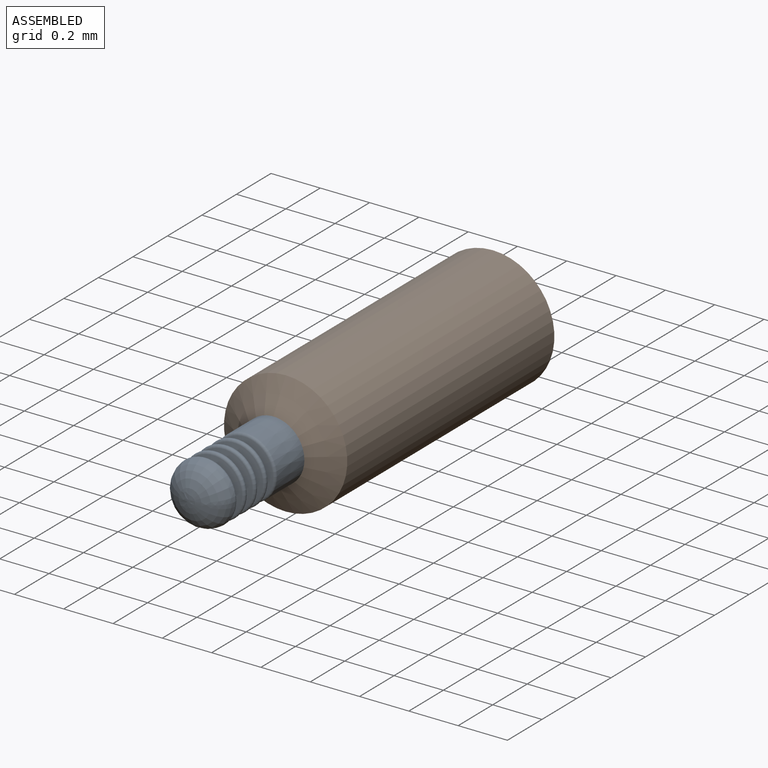
[diagram: assembled view]
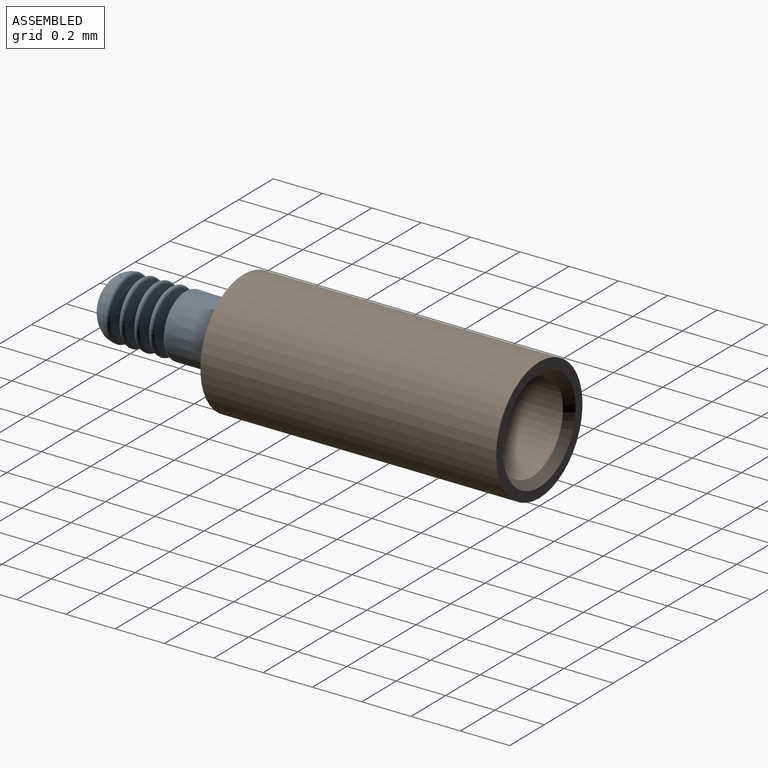
[diagram: assembled view, second angle]
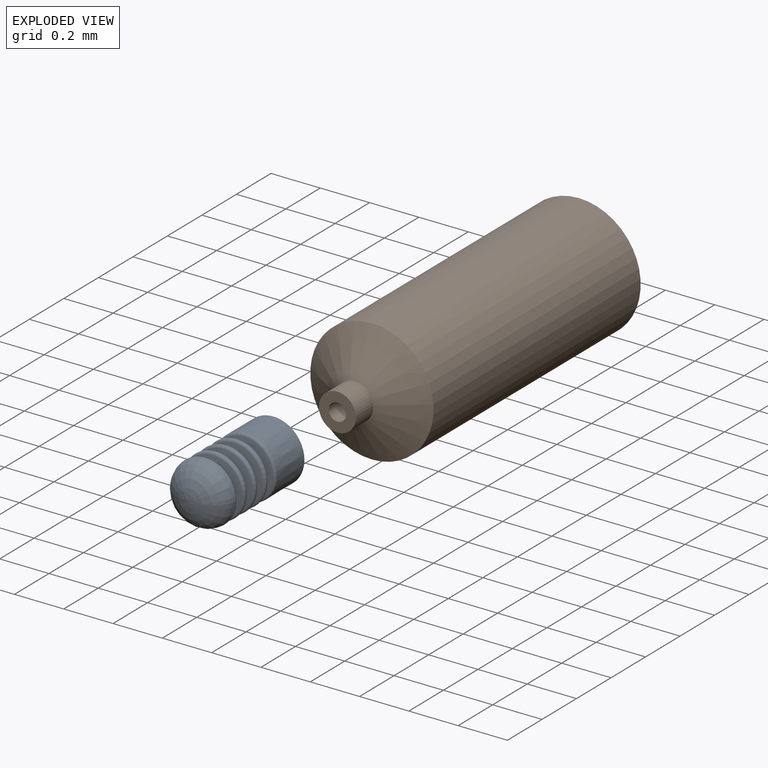
[diagram: exploded view]
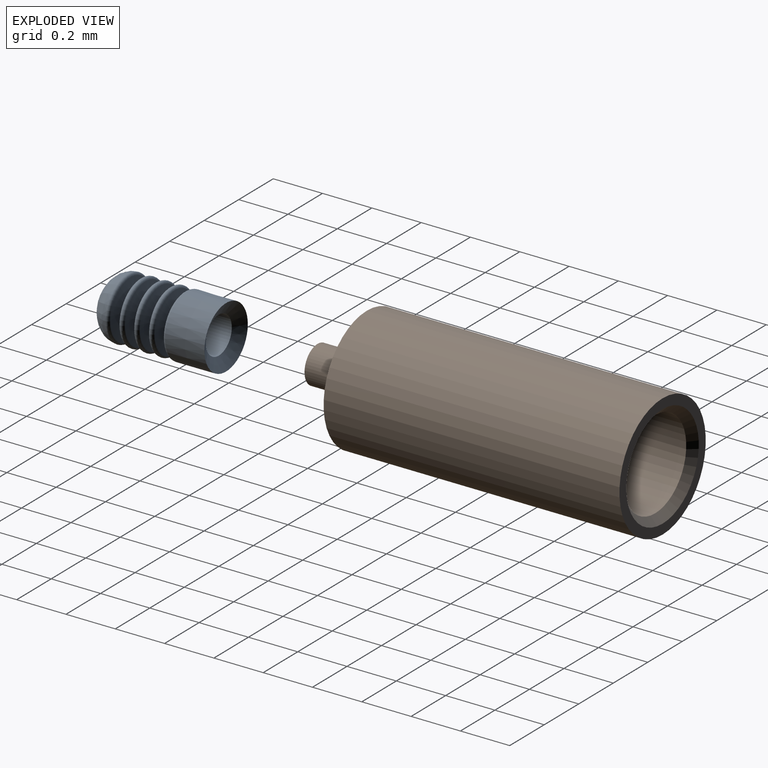
[diagram: exploded view, second angle]
ASSEMBLY  parts=2 mates=2
PART A: 42 faces, bbox 0.5x0.3x0.3 mm
  f0: torus R=0.12mm, axis (-1,0,0), area 0mm2, adj f1,f41
  f1: cone r=0.12mm half-angle=81.4deg, axis (1,0,0), area 0mm2, adj f0,f2
  f2: torus R=0.05mm, axis (-1,0,0), area 0mm2, adj f1,f3
  f3: cone r=0.12mm half-angle=81.4deg, axis (-1,0,0), area 0mm2, adj f2,f4
  f4: torus R=0.12mm, axis (-1,0,0), area 0mm2, adj f3,f5
  f5: cone r=0.12mm half-angle=81.4deg, axis (1,0,0), area 0mm2, adj f4,f6
  f6: torus R=0.05mm, axis (-1,0,0), area 0mm2, adj f5,f7
  f7: cone r=0.12mm half-angle=81.4deg, axis (-1,0,0), area 0mm2, adj f6,f8
  f8: torus R=0.12mm, axis (-1,0,0), area 0mm2, adj f7,f9
  f9: cone r=0.12mm half-angle=81.4deg, axis (1,0,0), area 0mm2, adj f8,f10
  f10: torus R=0.05mm, axis (-1,0,0), area 0mm2, adj f9,f11
  f11: cone r=0.12mm half-angle=81.4deg, axis (-1,0,0), area 0mm2, adj f10,f12
  f12: torus R=0.12mm, axis (-1,0,0), area 0mm2, adj f11,f13
  f13: revolved ~0.25x0.25mm, area 0.1mm2, adj f12,f14
  f14: cone r=0.07mm half-angle=60deg, axis (-1,0,0), area 0mm2, adj f13,f15
  f15: cylinder r=0.07mm len=0.15mm, axis (-1,0,0), area 0mm2, adj f14,f16
  f16: plane 0.15x0.15mm, normal (-1,0,0), area 0mm2, adj f15,f17
  f17: cylinder r=0.03mm len=0.07mm, axis (-1,0,0), area 0mm2, adj f16,f18
  f18: revolved ~0.25x0.25mm, area 0mm2, adj f17,f19
  f19: torus R=0.12mm, axis (-1,0,0), area 0mm2, adj f18,f20
  f20: cone r=0.12mm half-angle=81.4deg, axis (-1,0,0), area 0mm2, adj f19,f21
  f21: torus R=0.05mm, axis (-1,0,0), area 0mm2, adj f20,f22
  f22: cone r=0.12mm half-angle=81.4deg, axis (1,0,0), area 0mm2, adj f21,f23
  f23: torus R=0.12mm, axis (-1,0,0), area 0mm2, adj f22,f24
  f24: cone r=0.12mm half-angle=81.4deg, axis (-1,0,0), area 0mm2, adj f23,f25
  f25: torus R=0.05mm, axis (-1,0,0), area 0mm2, adj f24,f26
  f26: cone r=0.12mm half-angle=81.4deg, axis (1,0,0), area 0mm2, adj f25,f27
  f27: torus R=0.12mm, axis (-1,0,0), area 0mm2, adj f26,f28
  f28: cone r=0.12mm half-angle=81.4deg, axis (-1,0,0), area 0mm2, adj f27,f29
  f29: torus R=0.05mm, axis (-1,0,0), area 0mm2, adj f28,f30
  f30: cone r=0.12mm half-angle=81.4deg, axis (1,0,0), area 0mm2, adj f29,f31
  f31: torus R=0.12mm, axis (-1,0,0), area 0mm2, adj f30,f32
  f32: cone r=0.12mm half-angle=81.4deg, axis (-1,0,0), area 0mm2, adj f31,f33
  f33: torus R=0.05mm, axis (-1,0,0), area 0mm2, adj f32,f34
  f34: cone r=0.12mm half-angle=81.4deg, axis (1,0,0), area 0mm2, adj f33,f35
  f35: torus R=0.12mm, axis (-1,0,0), area 0mm2, adj f34,f36
  f36: revolved ~0.25x0.25mm, area 0.1mm2, adj f35
  f37: revolved ~0.25x0.25mm, area 0.1mm2, adj f38
  f38: torus R=0.12mm, axis (-1,0,0), area 0mm2, adj f37,f39
  f39: cone r=0.12mm half-angle=81.4deg, axis (1,0,0), area 0mm2, adj f38,f40
  f40: torus R=0.05mm, axis (-1,0,0), area 0mm2, adj f39,f41
  f41: cone r=0.12mm half-angle=81.4deg, axis (-1,0,0), area 0mm2, adj f0,f40
PART B: 9 faces, bbox 1.4x0.5x0.5 mm
  f0: cylinder r=0.07mm len=0.15mm, axis (-1,0,0), area 0mm2, adj f1,f7
  f1: cone r=0.07mm half-angle=60.3deg, axis (-1,0,0), area 0.2mm2, adj f0,f2
  f2: cylinder r=0.25mm len=1.2mm, axis (-1,0,0), area 1.9mm2, adj f1,f3
  f3: plane 0.5x0.5mm, normal (-1,0,0), area 0.1mm2, adj f2,f8
  f4: cylinder r=0.18mm len=0.97mm, axis (-1,0,0), area 1.1mm2, adj f5,f8
  f5: plane 0.36x0.36mm, normal (-1,0,0), area 0.1mm2, adj f4,f6
  f6: cylinder r=0.03mm len=0.4mm, axis (-1,0,0), area 0.1mm2, adj f5,f7
  f7: plane 0.15x0.15mm, normal (1,0,0), area 0mm2, adj f0,f6
  f8: cone r=0.18mm half-angle=45deg, axis (-1,0,0), area 0.1mm2, adj f3,f4
PLACE A rot(axis=(0,0,-1),90deg) t=(0,-0.67,0)mm
PLACE B rot(axis=(0,0,-1),90deg) t=(0,0.37,0)mm
MATE planar A.f0 <-> B.f0  axis (0,1,0) through (0,-0.4,0)mm
MATE slider A.f5 <-> B.f0  axis (0,1,0) through (0,-0.35,0)mm
